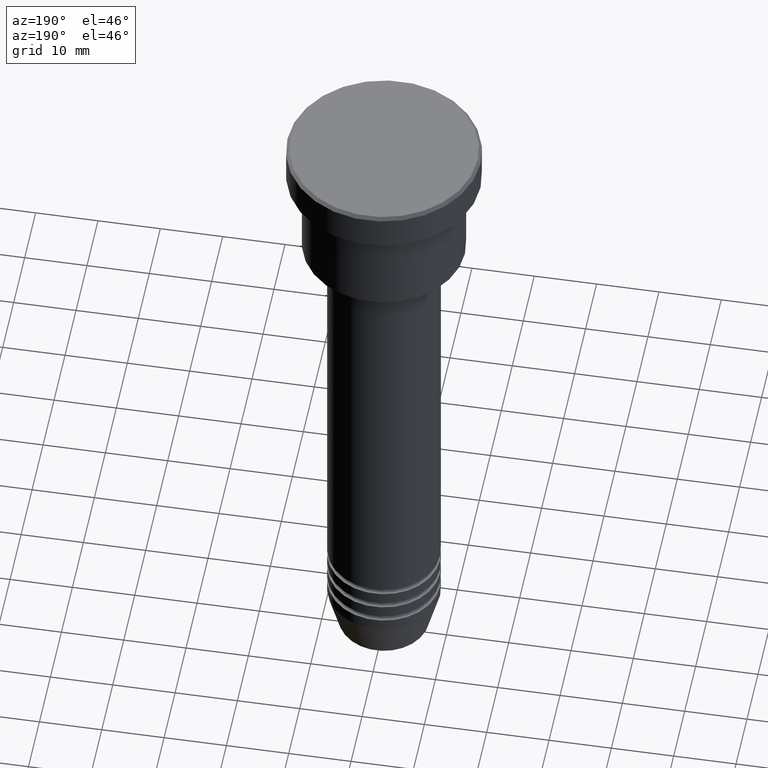
[diagram: clean part render]
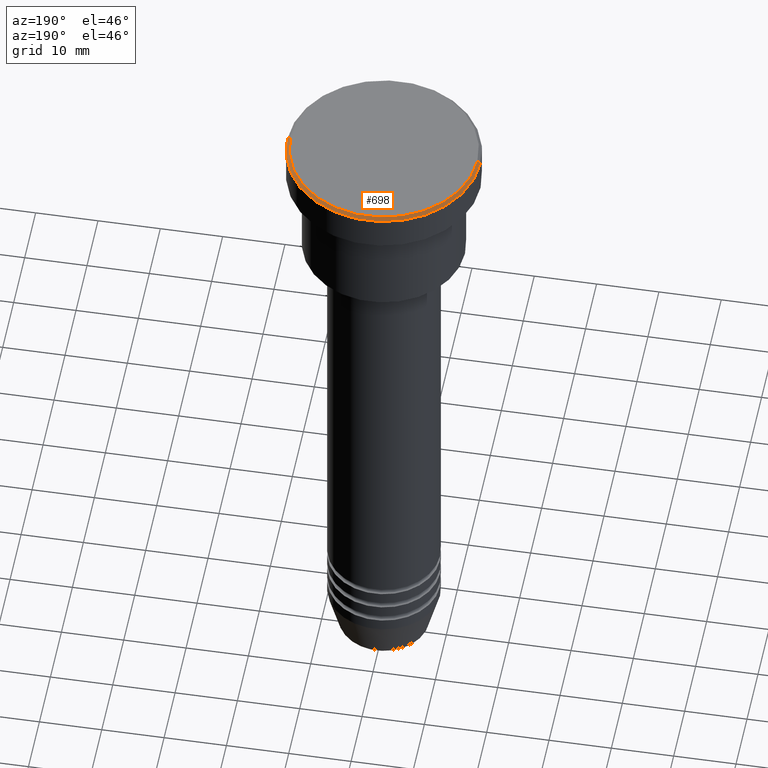
[diagram: same view with one face highlighted and labeled with its STEP entity id]
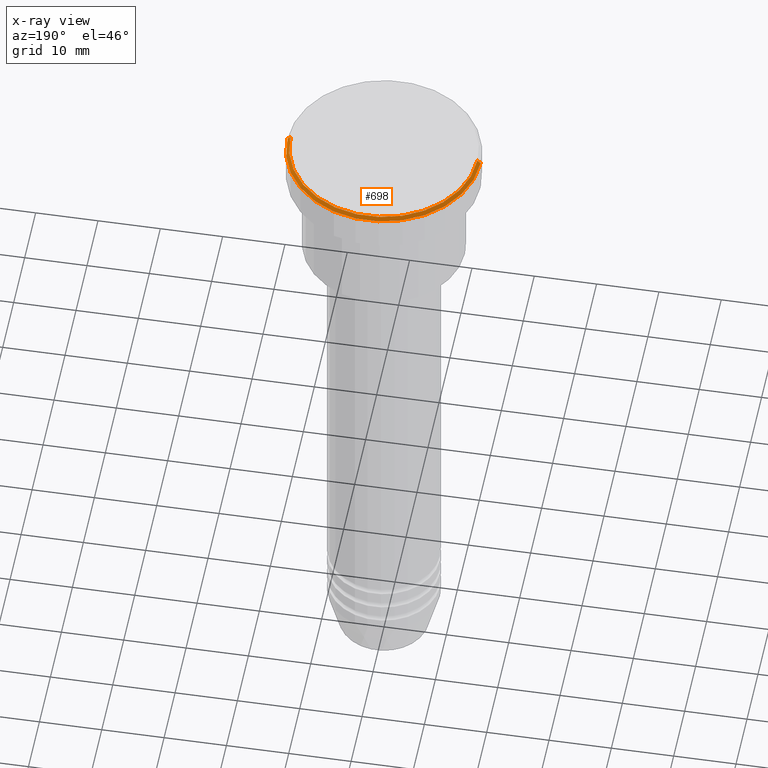
[diagram: x-ray of the same camera — body ghosted, the highlighted face saturated]
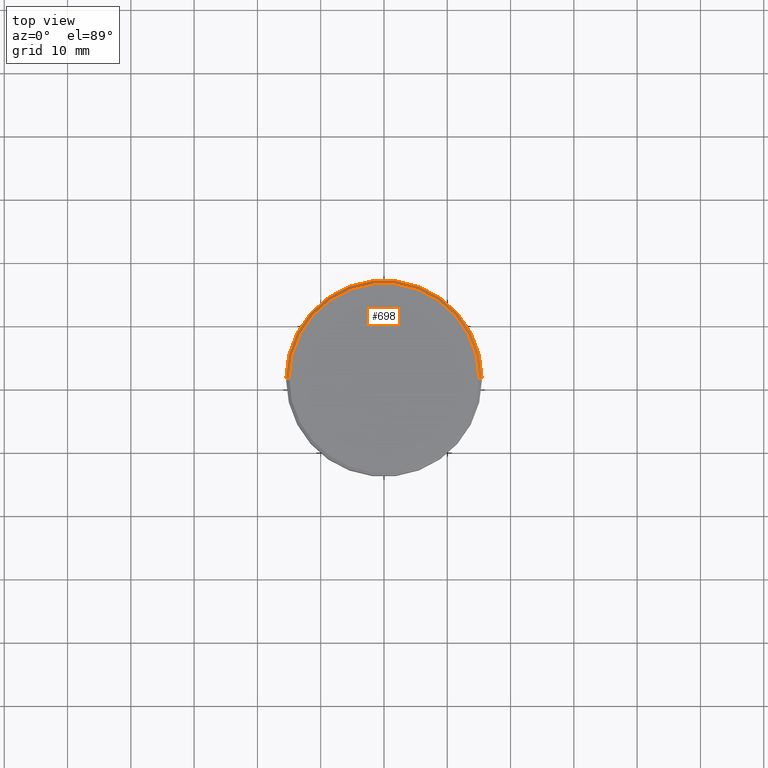
[diagram: same view with one face highlighted and labeled with its STEP entity id]
A machine part, auxiliary view. The second image highlights one B-rep face of the part: STEP entity #698.
The next image is the same camera in x-ray: the body ghosted, the highlighted face saturated — about 0% of this face is hidden behind the body in this view.
A second angle (top view) of the same face is appended — the face is thin or edge-on in the first view.
In plain terms, the highlighted conical surface has half-angle 45 deg.
Its self-contained STEP definition (entity closure, byte-faithful):
#1 = DIRECTION ( 'NONE',  ( 1.000000000000000000, 0.000000000000000000, 0.000000000000000000 ) ) ;
#8 = DIRECTION ( 'NONE',  ( -0.7071067811865487940, 0.000000000000000000, -0.7071067811865463515 ) ) ;
#35 = AXIS2_PLACEMENT_3D ( 'NONE', #360, #627, #801 ) ;
#173 = CARTESIAN_POINT ( 'NONE',  ( -15.00000000000002665, 0.000000000000000000, 0.000000000000000000 ) ) ;
#185 = DIRECTION ( 'NONE',  ( -0.000000000000000000, -0.000000000000000000, 1.000000000000000000 ) ) ;
#224 = VECTOR ( 'NONE', #8, 1000.000000000000000 ) ;
#230 = VERTEX_POINT ( 'NONE', #312 ) ;
#280 = CARTESIAN_POINT ( 'NONE',  ( 15.00000000000002665, 1.836970198721033139E-15, 0.000000000000000000 ) ) ;
#285 = CIRCLE ( 'NONE', #1041, 15.00000000000002665 ) ;
#289 = CARTESIAN_POINT ( 'NONE',  ( -15.00000000000002665, 0.000000000000000000, 0.000000000000000000 ) ) ;
#294 = ORIENTED_EDGE ( 'NONE', *, *, #689, .F. ) ;
#296 = EDGE_CURVE ( 'NONE', #658, #648, #820, .T. ) ;
#312 = CARTESIAN_POINT ( 'NONE',  ( 15.00000000000002665, 1.867586368699715348E-15, 0.000000000000000000 ) ) ;
#360 = CARTESIAN_POINT ( 'NONE',  ( 0.000000000000000000, 0.000000000000000000, 0.000000000000000000 ) ) ;
#380 = EDGE_CURVE ( 'NONE', #230, #715, #1091, .T. ) ;
#417 = ORIENTED_EDGE ( 'NONE', *, *, #380, .T. ) ;
#459 = ORIENTED_EDGE ( 'NONE', *, *, #461, .F. ) ;
#461 = EDGE_CURVE ( 'NONE', #648, #715, #1023, .T. ) ;
#475 = CONICAL_SURFACE ( 'NONE', #35, 15.00000000000002665, 0.7853981633974500554 ) ;
#484 = EDGE_LOOP ( 'NONE', ( #294, #417, #459, #1006 ) ) ;
#627 = DIRECTION ( 'NONE',  ( 0.000000000000000000, 0.000000000000000000, -1.000000000000000000 ) ) ;
#648 = VERTEX_POINT ( 'NONE', #913 ) ;
#658 = VERTEX_POINT ( 'NONE', #289 ) ;
#689 = EDGE_CURVE ( 'NONE', #230, #658, #285, .T. ) ;
#698 = ADVANCED_FACE ( 'NONE', ( #1072 ), #475, .T. ) ;
#715 = VERTEX_POINT ( 'NONE', #1027 ) ;
#786 = VECTOR ( 'NONE', #1165, 1000.000000000000000 ) ;
#801 = DIRECTION ( 'NONE',  ( -1.000000000000000000, 0.000000000000000000, 0.000000000000000000 ) ) ;
#820 = LINE ( 'NONE', #173, #224 ) ;
#913 = CARTESIAN_POINT ( 'NONE',  ( -15.50000000000000000, 1.898202538678397557E-15, -0.4999999999999709677 ) ) ;
#919 = CARTESIAN_POINT ( 'NONE',  ( 0.000000000000000000, 0.000000000000000000, -0.4999999999999709677 ) ) ;
#959 = AXIS2_PLACEMENT_3D ( 'NONE', #919, #1126, #1052 ) ;
#1006 = ORIENTED_EDGE ( 'NONE', *, *, #296, .F. ) ;
#1023 = CIRCLE ( 'NONE', #959, 15.50000000000000000 ) ;
#1027 = CARTESIAN_POINT ( 'NONE',  ( 15.50000000000000000, 0.000000000000000000, -0.4999999999999709677 ) ) ;
#1041 = AXIS2_PLACEMENT_3D ( 'NONE', #1166, #185, #1 ) ;
#1052 = DIRECTION ( 'NONE',  ( 1.000000000000000000, 0.000000000000000000, 0.000000000000000000 ) ) ;
#1072 = FACE_OUTER_BOUND ( 'NONE', #484, .T. ) ;
#1091 = LINE ( 'NONE', #280, #786 ) ;
#1126 = DIRECTION ( 'NONE',  ( 0.000000000000000000, 0.000000000000000000, -1.000000000000000000 ) ) ;
#1165 = DIRECTION ( 'NONE',  ( 0.7071067811865487940, 8.659560562354950115E-17, -0.7071067811865463515 ) ) ;
#1166 = CARTESIAN_POINT ( 'NONE',  ( 0.000000000000000000, 0.000000000000000000, 0.000000000000000000 ) ) ;